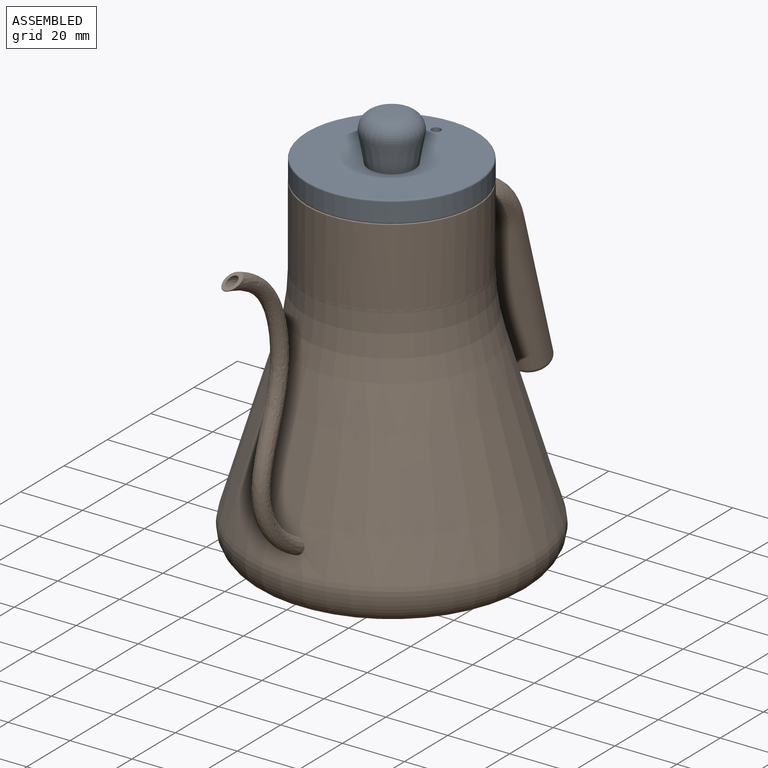
[diagram: assembled view]
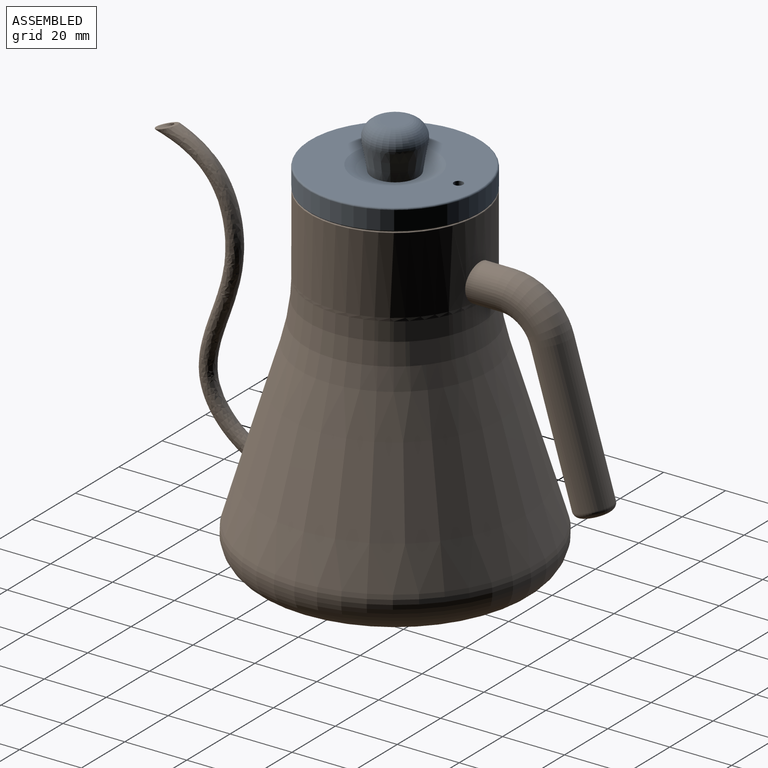
[diagram: assembled view, second angle]
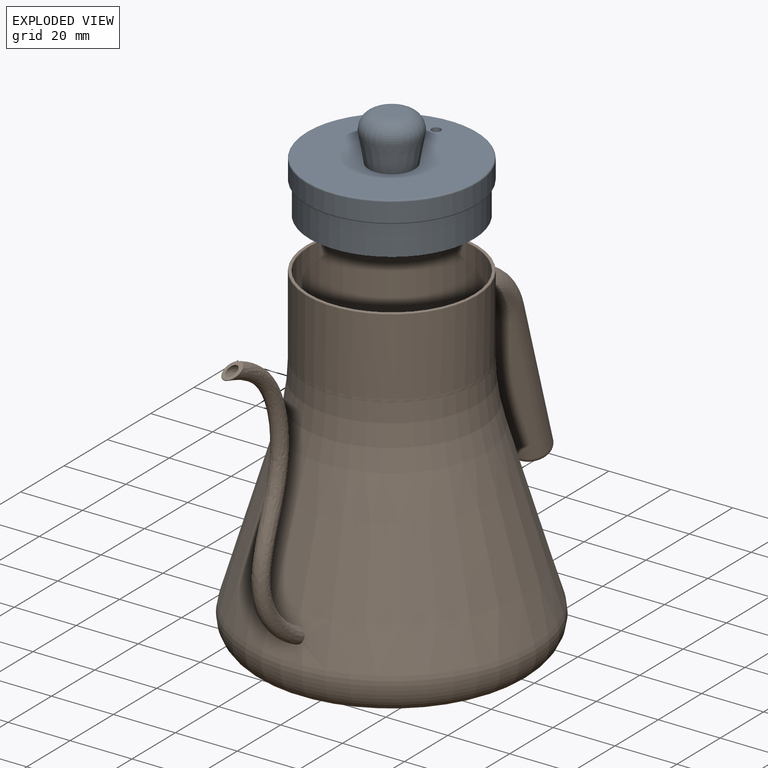
[diagram: exploded view]
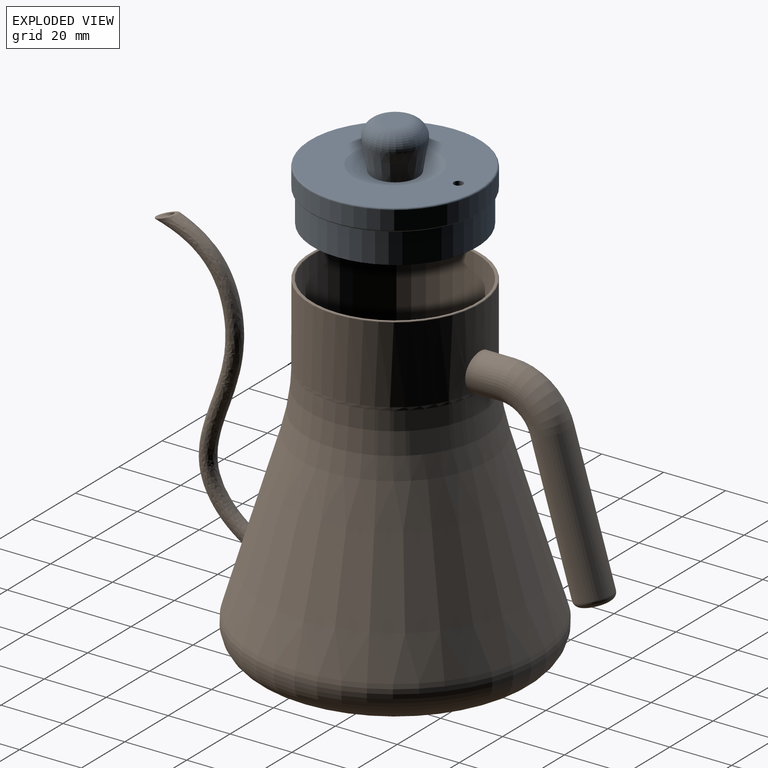
[diagram: exploded view, second angle]
ASSEMBLY  parts=2 mates=2
PART A: 15 faces, bbox 59.5x59.5x30 mm
  f0: plane 51x51mm, normal (0,0,-1), area 2035.8mm2, adj f1,f10
  f1: cylinder r=25.5mm len=51mm, axis (0,0,-1), area 1602.2mm2, adj f0,f2
  f2: plane 53x53mm, normal (0,0,-1), area 163.4mm2, adj f1,f3
  f3: cylinder r=26.5mm len=53mm, axis (0,0,-1), area 1665mm2, adj f2,f4
  f4: plane 54x54mm, normal (0,0,-1), area 84mm2, adj f3,f13
  f5: cylinder r=27.5mm len=55mm, axis (0,0,-1), area 1036.7mm2, adj f13,f14
  f6: plane 54x54mm, normal (0,0,1), area 1705.9mm2, adj f10,f12,f14
  f7: sphere r=37.5mm, area 407.7mm2, adj f8,f12
  f8: cone r=10mm half-angle=10deg, axis (0,0,1), area 464.3mm2, adj f7,f11
  f9: plane 8.08x8.08mm, normal (0,0,1), area 51.3mm2, adj f11
  f10: cylinder r=1.5mm len=7mm, axis (0,0,-1), area 66mm2, adj f0,f6
  f11: torus R=4.04mm, axis (0,0,1), area 405.9mm2, adj f8,f9
  f12: torus R=13.56mm, axis (0,0,-1), area 15.4mm2, adj f6,f7
  f13: torus R=27mm, axis (0,0,-1), area 134.8mm2, adj f4,f5
  f14: torus R=27mm, axis (0,0,-1), area 134.8mm2, adj f5,f6
PART B: 22 faces, bbox 103.5x164.1x135.4 mm
  f0: bspline ~101.72x67.98mm, area 1674.4mm2, adj f3,f19
  f1: bspline ~99.72x67.96mm, area 1017.9mm2, adj f9,f17
  f2: plane 73.09x73.09mm, normal (0,0,-1), area 4195.3mm2, adj f7
  f3: cone r=30.48mm half-angle=16.8deg, axis (0,0,-1), area 13029mm2, adj f0,f4,f7
  f4: torus R=97.5mm, axis (0,0,-1), area 3662.8mm2, adj f3,f5,f13
  f5: cylinder r=27.5mm len=55mm, axis (0,0,-1), area 4167.3mm2, adj f4,f13,f21
  f6: plane 54.5x54.5mm, normal (0,0,1), area 84.8mm2, adj f20,f21
  f7: torus R=36.54mm, axis (0,0,-1), area 5088.1mm2, adj f2,f3
  f8: plane 73.09x73.09mm, normal (0,0,1), area 4195.3mm2, adj f12
  f9: cone r=29.52mm half-angle=16.8deg, axis (0,0,-1), area 12715.5mm2, adj f1,f10,f12
  f10: torus R=97.5mm, axis (0,0,-1), area 3591mm2, adj f9,f11
  f11: cylinder r=26.5mm len=53mm, axis (0,0,-1), area 4121mm2, adj f10,f20
  f12: torus R=36.54mm, axis (0,0,-1), area 4506.5mm2, adj f8,f9
  f13: cylinder r=6mm len=12mm, axis (0,1,0), area 341.3mm2, adj f4,f5,f15
  f14: plane 8x7.66mm, normal (0,0.29,-0.96), area 50.3mm2, adj f18
  f15: torus R=15mm, axis (-1,0,0), area 722.8mm2, adj f13,f16
  f16: cylinder r=6mm len=48.32mm, axis (0,0.29,-0.96), area 1766.3mm2, adj f15,f18
  f17: plane 6.92x4.5mm, normal (0,-0.34,0.94), area 14.3mm2, adj f1,f19
  f18: torus R=4mm, axis (0,-0.29,0.96), area 104.1mm2, adj f14,f16
  f19: bspline ~7.85x5.02mm, area 8mm2, adj f0,f17
  f20: torus R=26.75mm, axis (0,0,-1), area 65.6mm2, adj f6,f11
  f21: torus R=27.25mm, axis (0,0,-1), area 67.6mm2, adj f5,f6
PLACE A t=(0,11.31,140.02)mm
PLACE B t=(0,11.31,30.02)mm
MATE planar A.f1 <-> B.f3  axis (0,0,-1) through (0,11.31,140.02)mm
MATE cylindrical A.f1 <-> B.f3  axis (0,0,-1) through (0,11.31,140.02)mm
